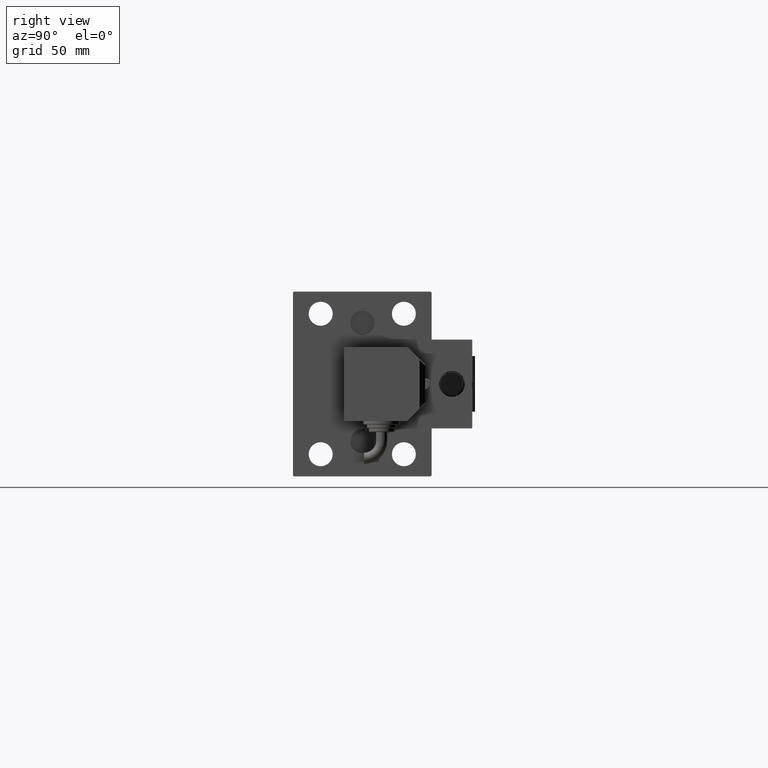
[diagram: clean part render]
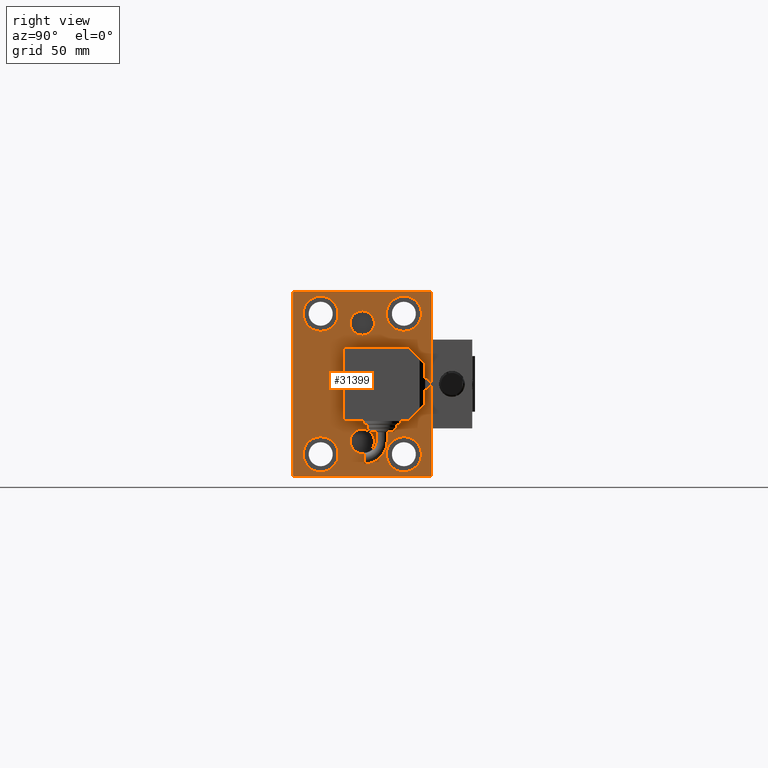
[diagram: same view with one face highlighted and labeled with its STEP entity id]
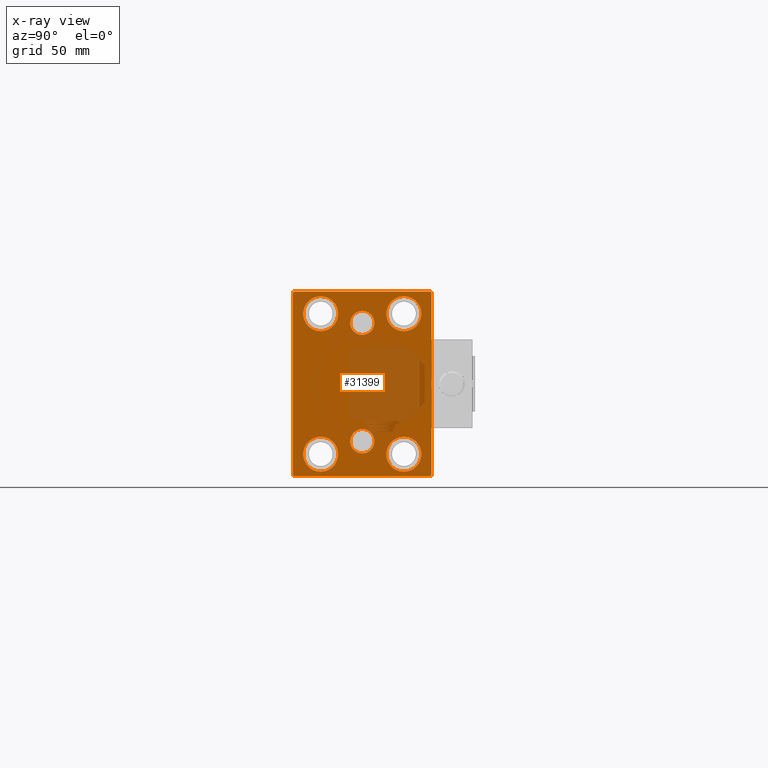
[diagram: x-ray of the same camera — body ghosted, the highlighted face saturated]
A machine part, right view. The second image highlights one B-rep face of the part: STEP entity #31399.
The next image is the same camera in x-ray: the body ghosted, the highlighted face saturated — about 27% of this face is hidden behind the body in this view.
In plain terms, the highlighted planar face has unit normal (1, 0, 0).
Its self-contained STEP definition (entity closure, byte-faithful):
#403 = DIRECTION ( 'NONE',  ( 1.000000000000000000, 0.000000000000000000, 0.000000000000000000 ) ) ;
#2028 = EDGE_LOOP ( 'NONE', ( #39992, #27946 ) ) ;
#2029 = CARTESIAN_POINT ( 'NONE',  ( 273.0000000000000000, 36.99999999999993605, 50.00000000000000711 ) ) ;
#2145 = CIRCLE ( 'NONE', #15027, 9.500000000000001776 ) ;
#2245 = CARTESIAN_POINT ( 'NONE',  ( 273.0000000000000000, -5.306417150674642989E-15, 33.00000000000000711 ) ) ;
#2265 = AXIS2_PLACEMENT_3D ( 'NONE', #6344, #36836, #29515 ) ;
#2416 = ORIENTED_EDGE ( 'NONE', *, *, #41540, .T. ) ;
#2541 = CIRCLE ( 'NONE', #19442, 6.579999999999999183 ) ;
#2569 = AXIS2_PLACEMENT_3D ( 'NONE', #6896, #23007, #26544 ) ;
#2975 = ORIENTED_EDGE ( 'NONE', *, *, #37895, .T. ) ;
#3215 = DIRECTION ( 'NONE',  ( 1.000000000000000000, 0.000000000000000000, -0.000000000000000000 ) ) ;
#3283 = VERTEX_POINT ( 'NONE', #2029 ) ;
#3325 = CARTESIAN_POINT ( 'NONE',  ( 273.0000000000000000, 4.602222671195751790E-15, -24.41999999999999105 ) ) ;
#3513 = ORIENTED_EDGE ( 'NONE', *, *, #7770, .T. ) ;
#3600 = CARTESIAN_POINT ( 'NONE',  ( 273.0000000000000000, 22.49999999999999645, -47.49999999999999289 ) ) ;
#3728 = ORIENTED_EDGE ( 'NONE', *, *, #3816, .T. ) ;
#3816 = EDGE_CURVE ( 'NONE', #46193, #12656, #12483, .T. ) ;
#3918 = AXIS2_PLACEMENT_3D ( 'NONE', #20736, #17214, #41564 ) ;
#3929 = VERTEX_POINT ( 'NONE', #3325 ) ;
#5398 = VECTOR ( 'NONE', #25431, 1000.000000000000000 ) ;
#5497 = CARTESIAN_POINT ( 'NONE',  ( 273.0000000000000000, 37.49999999999999289, 49.49999999999995026 ) ) ;
#5540 = DIRECTION ( 'NONE',  ( 0.000000000000000000, 0.000000000000000000, -1.000000000000000000 ) ) ;
#5564 = ORIENTED_EDGE ( 'NONE', *, *, #7838, .T. ) ;
#5670 = DIRECTION ( 'NONE',  ( 0.000000000000000000, 0.000000000000000000, 1.000000000000000000 ) ) ;
#5745 = EDGE_CURVE ( 'NONE', #3283, #9672, #39399, .T. ) ;
#5821 = CIRCLE ( 'NONE', #2569, 6.580000000000002736 ) ;
#6092 = EDGE_CURVE ( 'NONE', #35093, #26669, #36678, .T. ) ;
#6344 = CARTESIAN_POINT ( 'NONE',  ( 273.0000000000000000, -22.50000000000000711, -37.99999999999999289 ) ) ;
#6774 = CARTESIAN_POINT ( 'NONE',  ( 273.0000000000000000, -37.50000000000000711, -50.00000000000000711 ) ) ;
#6896 = CARTESIAN_POINT ( 'NONE',  ( 273.0000000000000000, 3.796405077356792748E-15, -30.99999999999999289 ) ) ;
#6898 = CIRCLE ( 'NONE', #39914, 9.500000000000001776 ) ;
#6972 = VECTOR ( 'NONE', #27845, 1000.000000000000000 ) ;
#6991 = CARTESIAN_POINT ( 'NONE',  ( 273.0000000000000000, 3.796405077356792748E-15, -30.99999999999999289 ) ) ;
#7073 = EDGE_CURVE ( 'NONE', #26831, #14326, #39118, .T. ) ;
#7224 = FACE_BOUND ( 'NONE', #33973, .T. ) ;
#7254 = EDGE_LOOP ( 'NONE', ( #12457, #3728 ) ) ;
#7492 = EDGE_CURVE ( 'NONE', #13875, #38866, #27350, .T. ) ;
#7770 = EDGE_CURVE ( 'NONE', #47303, #23177, #37019, .T. ) ;
#7838 = EDGE_CURVE ( 'NONE', #17613, #3283, #48369, .T. ) ;
#7962 = FACE_BOUND ( 'NONE', #32006, .T. ) ;
#8050 = CARTESIAN_POINT ( 'NONE',  ( 273.0000000000000000, 3.796405077356792748E-15, -37.57999999999999829 ) ) ;
#8561 = CARTESIAN_POINT ( 'NONE',  ( 273.0000000000000000, 22.50000000000000355, 37.99999999999999289 ) ) ;
#8662 = AXIS2_PLACEMENT_3D ( 'NONE', #13844, #37003, #21388 ) ;
#8784 = CARTESIAN_POINT ( 'NONE',  ( 273.0000000000000000, -37.50000000000000711, -49.50000000000000711 ) ) ;
#8956 = DIRECTION ( 'NONE',  ( -1.000000000000000000, -0.000000000000000000, -0.000000000000000000 ) ) ;
#9322 = CARTESIAN_POINT ( 'NONE',  ( 273.0000000000000000, 43.50000000000022737, 43.49999999999962341 ) ) ;
#9604 = EDGE_CURVE ( 'NONE', #28704, #26420, #6898, .T. ) ;
#9672 = VERTEX_POINT ( 'NONE', #12348 ) ;
#10322 = AXIS2_PLACEMENT_3D ( 'NONE', #34170, #403, #37952 ) ;
#10770 = DIRECTION ( 'NONE',  ( 0.000000000000000000, 0.000000000000000000, 1.000000000000000000 ) ) ;
#10925 = EDGE_CURVE ( 'NONE', #26669, #35093, #2145, .T. ) ;
#11046 = ORIENTED_EDGE ( 'NONE', *, *, #44615, .T. ) ;
#11060 = DIRECTION ( 'NONE',  ( 0.000000000000000000, 1.000000000000000000, 9.251858538542970348E-17 ) ) ;
#11632 = CARTESIAN_POINT ( 'NONE',  ( 273.0000000000000000, -43.49999999999997158, 43.49999999999997158 ) ) ;
#11749 = FACE_BOUND ( 'NONE', #45011, .T. ) ;
#12348 = CARTESIAN_POINT ( 'NONE',  ( 273.0000000000000000, -36.99999999999995026, 49.99999999999999289 ) ) ;
#12457 = ORIENTED_EDGE ( 'NONE', *, *, #32235, .T. ) ;
#12483 = CIRCLE ( 'NONE', #34196, 9.500000000000001776 ) ;
#12656 = VERTEX_POINT ( 'NONE', #3600 ) ;
#12840 = ORIENTED_EDGE ( 'NONE', *, *, #9604, .T. ) ;
#13357 = CARTESIAN_POINT ( 'NONE',  ( 273.0000000000000000, 43.50000000000103029, -43.49999999999860734 ) ) ;
#13844 = CARTESIAN_POINT ( 'NONE',  ( 273.0000000000000000, -22.50000000000000711, -37.99999999999999289 ) ) ;
#13875 = VERTEX_POINT ( 'NONE', #39619 ) ;
#14101 = DIRECTION ( 'NONE',  ( -0.000000000000000000, -0.7071067811865426878, 0.7071067811865524577 ) ) ;
#14326 = VERTEX_POINT ( 'NONE', #47247 ) ;
#14663 = CARTESIAN_POINT ( 'NONE',  ( 273.0000000000000000, 22.49999999999999645, -37.99999999999999289 ) ) ;
#15027 = AXIS2_PLACEMENT_3D ( 'NONE', #17016, #8956, #5670 ) ;
#15184 = CARTESIAN_POINT ( 'NONE',  ( 273.0000000000000000, 37.50000000000000711, -49.49999999999997158 ) ) ;
#15233 = CARTESIAN_POINT ( 'NONE',  ( 273.0000000000000000, -43.49999999999896261, -43.50000000000138556 ) ) ;
#15618 = ORIENTED_EDGE ( 'NONE', *, *, #30670, .T. ) ;
#15739 = ORIENTED_EDGE ( 'NONE', *, *, #5745, .T. ) ;
#15886 = DIRECTION ( 'NONE',  ( -1.000000000000000000, -0.000000000000000000, -0.000000000000000000 ) ) ;
#16263 = VECTOR ( 'NONE', #11060, 1000.000000000000000 ) ;
#16727 = CIRCLE ( 'NONE', #8662, 9.500000000000001776 ) ;
#16811 = CIRCLE ( 'NONE', #24065, 6.580000000000002736 ) ;
#16839 = CARTESIAN_POINT ( 'NONE',  ( 273.0000000000000000, 22.50000000000000355, 28.49999999999998934 ) ) ;
#17016 = CARTESIAN_POINT ( 'NONE',  ( 273.0000000000000000, -22.49999999999999645, 37.99999999999999289 ) ) ;
#17214 = DIRECTION ( 'NONE',  ( -1.000000000000000000, -0.000000000000000000, -0.000000000000000000 ) ) ;
#17613 = VERTEX_POINT ( 'NONE', #5497 ) ;
#17797 = CARTESIAN_POINT ( 'NONE',  ( 273.0000000000000000, 37.00000000000000711, -50.00000000000000000 ) ) ;
#19048 = FACE_BOUND ( 'NONE', #48033, .T. ) ;
#19193 = AXIS2_PLACEMENT_3D ( 'NONE', #22861, #46284, #26646 ) ;
#19442 = AXIS2_PLACEMENT_3D ( 'NONE', #39536, #27453, #20628 ) ;
#19735 = DIRECTION ( 'NONE',  ( -0.000000000000000000, 0.7071067811865672237, -0.7071067811865279218 ) ) ;
#20098 = VECTOR ( 'NONE', #25077, 1000.000000000000000 ) ;
#20127 = ORIENTED_EDGE ( 'NONE', *, *, #10925, .T. ) ;
#20245 = DIRECTION ( 'NONE',  ( 0.000000000000000000, -1.000000000000000000, -1.850371707708594316E-16 ) ) ;
#20539 = LINE ( 'NONE', #28851, #20098 ) ;
#20583 = ORIENTED_EDGE ( 'NONE', *, *, #42914, .F. ) ;
#20628 = DIRECTION ( 'NONE',  ( 0.000000000000000000, 0.000000000000000000, -1.000000000000000000 ) ) ;
#20689 = DIRECTION ( 'NONE',  ( -1.000000000000000000, -0.000000000000000000, -0.000000000000000000 ) ) ;
#20736 = CARTESIAN_POINT ( 'NONE',  ( 273.0000000000000000, 22.49999999999999645, -37.99999999999999289 ) ) ;
#21158 = DIRECTION ( 'NONE',  ( 1.000000000000000000, 0.000000000000000000, 0.000000000000000000 ) ) ;
#21331 = ORIENTED_EDGE ( 'NONE', *, *, #7492, .T. ) ;
#21388 = DIRECTION ( 'NONE',  ( 0.000000000000000000, 0.000000000000000000, 1.000000000000000000 ) ) ;
#21406 = VECTOR ( 'NONE', #20245, 1000.000000000000000 ) ;
#21584 = CIRCLE ( 'NONE', #2265, 9.500000000000001776 ) ;
#21766 = EDGE_CURVE ( 'NONE', #38866, #41358, #34619, .T. ) ;
#22861 = CARTESIAN_POINT ( 'NONE',  ( 273.0000000000000000, 22.50000000000000355, 37.99999999999999289 ) ) ;
#23007 = DIRECTION ( 'NONE',  ( 1.000000000000000000, 0.000000000000000000, -0.000000000000000000 ) ) ;
#23177 = VERTEX_POINT ( 'NONE', #15184 ) ;
#24065 = AXIS2_PLACEMENT_3D ( 'NONE', #6991, #3215, #34183 ) ;
#25077 = DIRECTION ( 'NONE',  ( 0.000000000000000000, -1.387778780781445676E-16, 1.000000000000000000 ) ) ;
#25431 = DIRECTION ( 'NONE',  ( -0.000000000000000000, 0.7071067811865279218, 0.7071067811865672237 ) ) ;
#26255 = LINE ( 'NONE', #11632, #37106 ) ;
#26397 = CARTESIAN_POINT ( 'NONE',  ( 273.0000000000000000, -22.49999999999999645, 37.99999999999999289 ) ) ;
#26420 = VERTEX_POINT ( 'NONE', #16839 ) ;
#26454 = VERTEX_POINT ( 'NONE', #39260 ) ;
#26544 = DIRECTION ( 'NONE',  ( 0.000000000000000000, 0.000000000000000000, 1.000000000000000000 ) ) ;
#26646 = DIRECTION ( 'NONE',  ( 0.000000000000000000, 0.000000000000000000, 1.000000000000000000 ) ) ;
#26669 = VERTEX_POINT ( 'NONE', #42736 ) ;
#26831 = VERTEX_POINT ( 'NONE', #32383 ) ;
#27037 = AXIS2_PLACEMENT_3D ( 'NONE', #26397, #20689, #10770 ) ;
#27159 = ORIENTED_EDGE ( 'NONE', *, *, #7073, .F. ) ;
#27350 = LINE ( 'NONE', #39177, #6972 ) ;
#27453 = DIRECTION ( 'NONE',  ( 1.000000000000000000, 0.000000000000000000, 0.000000000000000000 ) ) ;
#27703 = ORIENTED_EDGE ( 'NONE', *, *, #35831, .T. ) ;
#27845 = DIRECTION ( 'NONE',  ( 0.000000000000000000, 0.000000000000000000, -1.000000000000000000 ) ) ;
#27946 = ORIENTED_EDGE ( 'NONE', *, *, #48595, .F. ) ;
#28704 = VERTEX_POINT ( 'NONE', #36735 ) ;
#28851 = CARTESIAN_POINT ( 'NONE',  ( 273.0000000000000000, 37.50000000000000711, -50.00000000000000000 ) ) ;
#29515 = DIRECTION ( 'NONE',  ( 0.000000000000000000, 0.000000000000000000, 1.000000000000000000 ) ) ;
#30275 = DIRECTION ( 'NONE',  ( 0.000000000000000000, -0.7071067811865474617, -0.7071067811865474617 ) ) ;
#30670 = EDGE_CURVE ( 'NONE', #37989, #26454, #21584, .T. ) ;
#30887 = FACE_BOUND ( 'NONE', #7254, .T. ) ;
#30968 = ORIENTED_EDGE ( 'NONE', *, *, #21766, .T. ) ;
#31137 = FACE_OUTER_BOUND ( 'NONE', #40774, .T. ) ;
#31399 = ADVANCED_FACE ( 'NONE', ( #7962, #34923, #30887, #7224, #19048, #11749, #31137 ), #34675, .T. ) ;
#32006 = EDGE_LOOP ( 'NONE', ( #20583, #27159 ) ) ;
#32230 = ORIENTED_EDGE ( 'NONE', *, *, #34414, .T. ) ;
#32235 = EDGE_CURVE ( 'NONE', #12656, #46193, #47381, .T. ) ;
#32383 = CARTESIAN_POINT ( 'NONE',  ( 273.0000000000000000, -4.500599556835683947E-15, 39.58000000000000540 ) ) ;
#32640 = EDGE_CURVE ( 'NONE', #35529, #3929, #16811, .T. ) ;
#32899 = CIRCLE ( 'NONE', #19193, 9.500000000000001776 ) ;
#33973 = EDGE_LOOP ( 'NONE', ( #39015, #20127 ) ) ;
#34170 = CARTESIAN_POINT ( 'NONE',  ( 273.0000000000000000, 0.000000000000000000, 0.000000000000000000 ) ) ;
#34183 = DIRECTION ( 'NONE',  ( 0.000000000000000000, 0.000000000000000000, 1.000000000000000000 ) ) ;
#34196 = AXIS2_PLACEMENT_3D ( 'NONE', #14663, #45145, #44647 ) ;
#34414 = EDGE_CURVE ( 'NONE', #26454, #37989, #16727, .T. ) ;
#34619 = LINE ( 'NONE', #15233, #41093 ) ;
#34675 = PLANE ( 'NONE',  #10322 ) ;
#34923 = FACE_BOUND ( 'NONE', #2028, .T. ) ;
#35093 = VERTEX_POINT ( 'NONE', #45911 ) ;
#35134 = VECTOR ( 'NONE', #14101, 1000.000000000000000 ) ;
#35529 = VERTEX_POINT ( 'NONE', #8050 ) ;
#35831 = EDGE_CURVE ( 'NONE', #26420, #28704, #32899, .T. ) ;
#35858 = CARTESIAN_POINT ( 'NONE',  ( 273.0000000000000000, 37.49999999999999289, 50.00000000000000711 ) ) ;
#36678 = CIRCLE ( 'NONE', #27037, 9.500000000000001776 ) ;
#36735 = CARTESIAN_POINT ( 'NONE',  ( 273.0000000000000000, 22.50000000000000355, 47.49999999999999289 ) ) ;
#36836 = DIRECTION ( 'NONE',  ( -1.000000000000000000, -0.000000000000000000, -0.000000000000000000 ) ) ;
#37003 = DIRECTION ( 'NONE',  ( -1.000000000000000000, -0.000000000000000000, -0.000000000000000000 ) ) ;
#37019 = LINE ( 'NONE', #13357, #5398 ) ;
#37094 = CARTESIAN_POINT ( 'NONE',  ( 273.0000000000000000, -36.99999999999997868, -50.00000000000000711 ) ) ;
#37106 = VECTOR ( 'NONE', #30275, 1000.000000000000114 ) ;
#37260 = LINE ( 'NONE', #6774, #16263 ) ;
#37895 = EDGE_CURVE ( 'NONE', #23177, #17613, #20539, .T. ) ;
#37952 = DIRECTION ( 'NONE',  ( 0.000000000000000000, 0.000000000000000000, -1.000000000000000000 ) ) ;
#37989 = VERTEX_POINT ( 'NONE', #45213 ) ;
#38866 = VERTEX_POINT ( 'NONE', #8784 ) ;
#39015 = ORIENTED_EDGE ( 'NONE', *, *, #6092, .T. ) ;
#39118 = CIRCLE ( 'NONE', #46395, 6.579999999999999183 ) ;
#39177 = CARTESIAN_POINT ( 'NONE',  ( 273.0000000000000000, -37.50000000000000711, 49.99999999999999289 ) ) ;
#39260 = CARTESIAN_POINT ( 'NONE',  ( 273.0000000000000000, -22.50000000000000711, -28.49999999999998934 ) ) ;
#39399 = LINE ( 'NONE', #35858, #21406 ) ;
#39536 = CARTESIAN_POINT ( 'NONE',  ( 273.0000000000000000, -5.306417150674642989E-15, 33.00000000000000711 ) ) ;
#39619 = CARTESIAN_POINT ( 'NONE',  ( 273.0000000000000000, -37.50000000000000711, 49.49999999999994316 ) ) ;
#39914 = AXIS2_PLACEMENT_3D ( 'NONE', #8561, #15886, #49638 ) ;
#39992 = ORIENTED_EDGE ( 'NONE', *, *, #32640, .F. ) ;
#40708 = CARTESIAN_POINT ( 'NONE',  ( 273.0000000000000000, 22.49999999999999645, -28.49999999999998934 ) ) ;
#40774 = EDGE_LOOP ( 'NONE', ( #15739, #2416, #21331, #30968, #11046, #3513, #2975, #5564 ) ) ;
#41093 = VECTOR ( 'NONE', #19735, 1000.000000000000000 ) ;
#41358 = VERTEX_POINT ( 'NONE', #37094 ) ;
#41540 = EDGE_CURVE ( 'NONE', #9672, #13875, #26255, .T. ) ;
#41564 = DIRECTION ( 'NONE',  ( 0.000000000000000000, 0.000000000000000000, 1.000000000000000000 ) ) ;
#42736 = CARTESIAN_POINT ( 'NONE',  ( 273.0000000000000000, -22.49999999999999645, 47.49999999999999289 ) ) ;
#42914 = EDGE_CURVE ( 'NONE', #14326, #26831, #2541, .T. ) ;
#44615 = EDGE_CURVE ( 'NONE', #41358, #47303, #37260, .T. ) ;
#44647 = DIRECTION ( 'NONE',  ( 0.000000000000000000, 0.000000000000000000, 1.000000000000000000 ) ) ;
#45011 = EDGE_LOOP ( 'NONE', ( #15618, #32230 ) ) ;
#45145 = DIRECTION ( 'NONE',  ( -1.000000000000000000, -0.000000000000000000, -0.000000000000000000 ) ) ;
#45213 = CARTESIAN_POINT ( 'NONE',  ( 273.0000000000000000, -22.50000000000000711, -47.49999999999999289 ) ) ;
#45911 = CARTESIAN_POINT ( 'NONE',  ( 273.0000000000000000, -22.49999999999999645, 28.49999999999998934 ) ) ;
#46193 = VERTEX_POINT ( 'NONE', #40708 ) ;
#46284 = DIRECTION ( 'NONE',  ( -1.000000000000000000, -0.000000000000000000, -0.000000000000000000 ) ) ;
#46395 = AXIS2_PLACEMENT_3D ( 'NONE', #2245, #21158, #5540 ) ;
#47247 = CARTESIAN_POINT ( 'NONE',  ( 273.0000000000000000, -5.306417150674642989E-15, 26.42000000000000881 ) ) ;
#47303 = VERTEX_POINT ( 'NONE', #17797 ) ;
#47381 = CIRCLE ( 'NONE', #3918, 9.500000000000001776 ) ;
#48033 = EDGE_LOOP ( 'NONE', ( #27703, #12840 ) ) ;
#48369 = LINE ( 'NONE', #9322, #35134 ) ;
#48595 = EDGE_CURVE ( 'NONE', #3929, #35529, #5821, .T. ) ;
#49638 = DIRECTION ( 'NONE',  ( 0.000000000000000000, 0.000000000000000000, 1.000000000000000000 ) ) ;